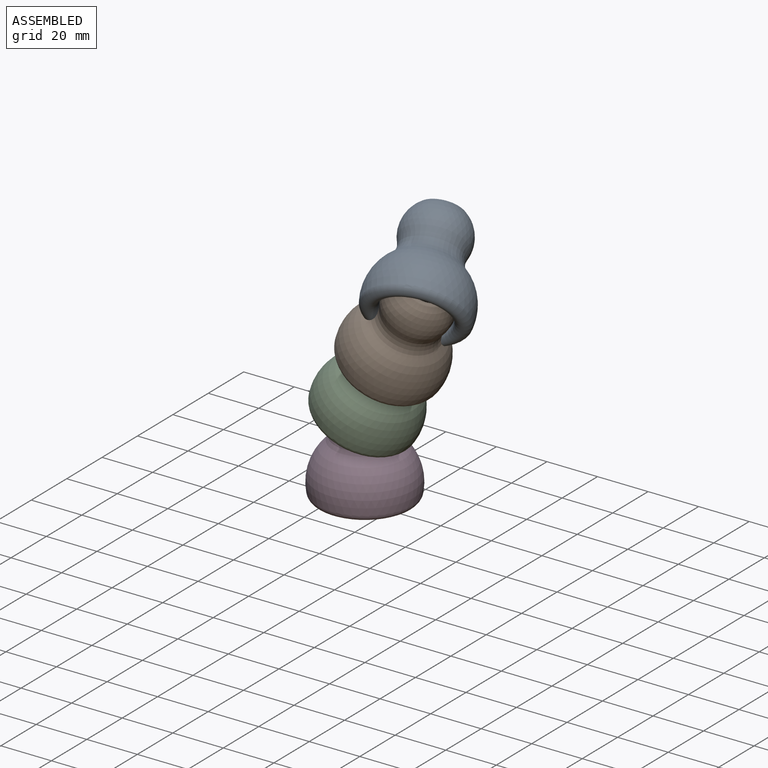
[diagram: assembled view]
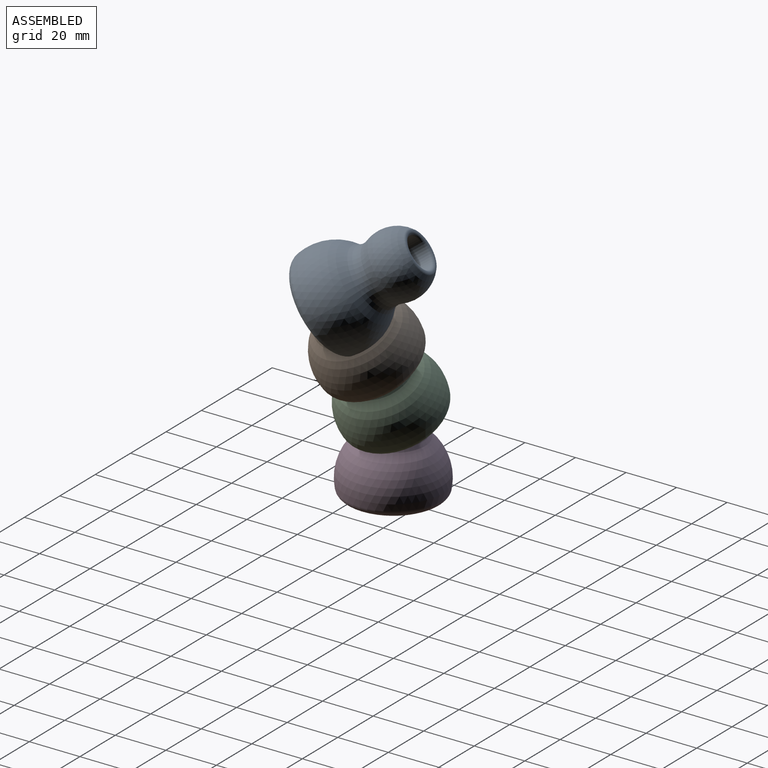
[diagram: assembled view, second angle]
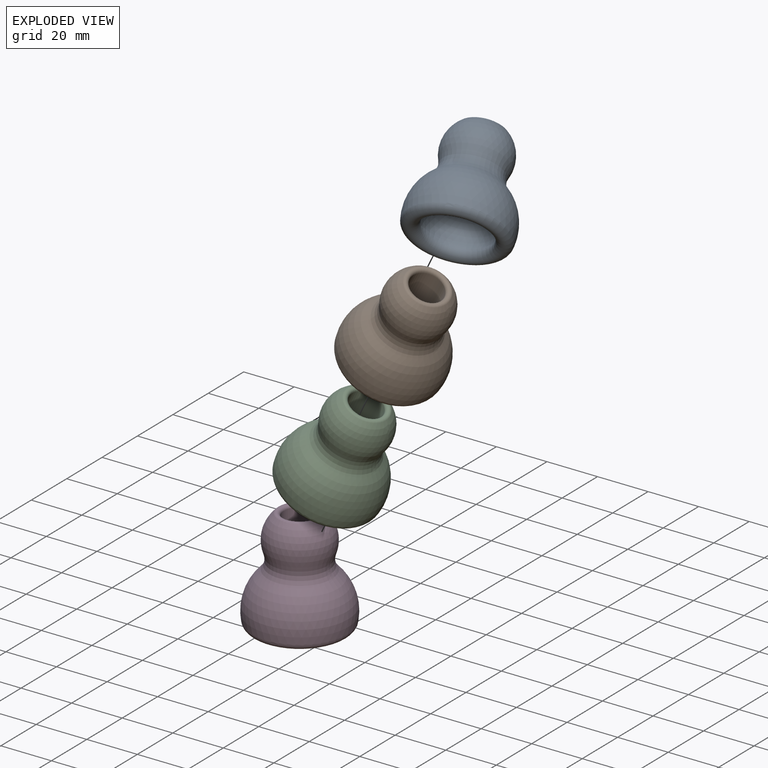
[diagram: exploded view]
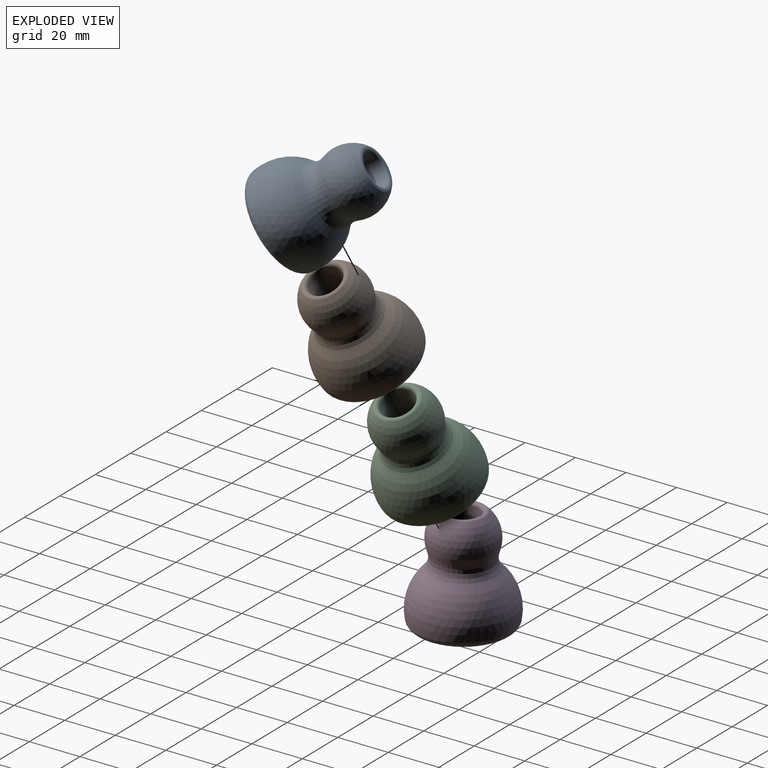
[diagram: exploded view, second angle]
ASSEMBLY  parts=4 mates=3
PART A: 8 faces, bbox 41.3x41.3x41.2 mm
  f0: sphere r=12.7mm, area 1121.8mm2, adj f2,f6
  f1: sphere r=12.95mm, area 1073.4mm2, adj f3,f7
  f2: torus R=17.76mm, axis (0,0,1), area 559mm2, adj f0,f4
  f3: torus R=15.88mm, axis (0,0,1), area 973.5mm2, adj f1,f4
  f4: sphere r=19.3mm, area 2096.1mm2, adj f2,f3
  f5: cylinder r=6.35mm len=21.91mm, axis (0,0,-1), area 874.1mm2, adj f6,f7
  f6: torus R=7.62mm, axis (0,0,-1), area 132.3mm2, adj f0,f5
  f7: torus R=7.62mm, axis (0,0,-1), area 52.6mm2, adj f1,f5
PART B: same geometry as A
PART C: same geometry as A
PART D: same geometry as A
PLACE A rot(axis=(-0.95,-0.22,0.21),55.6deg) t=(24.8,-5.21,71.93)mm
PLACE B rot(axis=(0.28,0.96,0),30.7deg) t=(12.33,-1.61,50.09)mm
PLACE C rot(axis=(0.12,0.99,-0.05),26.8deg) t=(1,-0.13,27.41)mm
PLACE D at identity fixed
MATE ball C.f2 <-> B.f2  axis (0.45,-0.06,0.89) through (12.33,-1.61,50.09)mm
MATE ball D.f2 <-> C.f2  axis (0,0,1) through (0,0,25.4)mm
MATE ball B.f2 <-> A.f2  axis (0.49,-0.14,0.86) through (24.8,-5.21,71.93)mm
